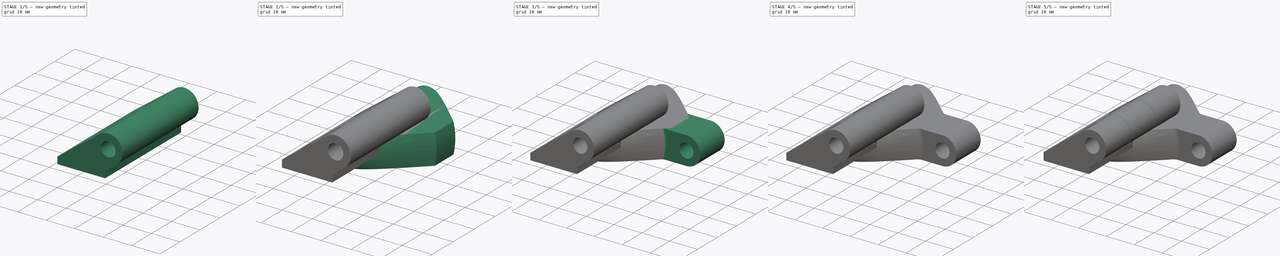
[diagram: build sequence overview — one tinted view per stage of 5, left to right]
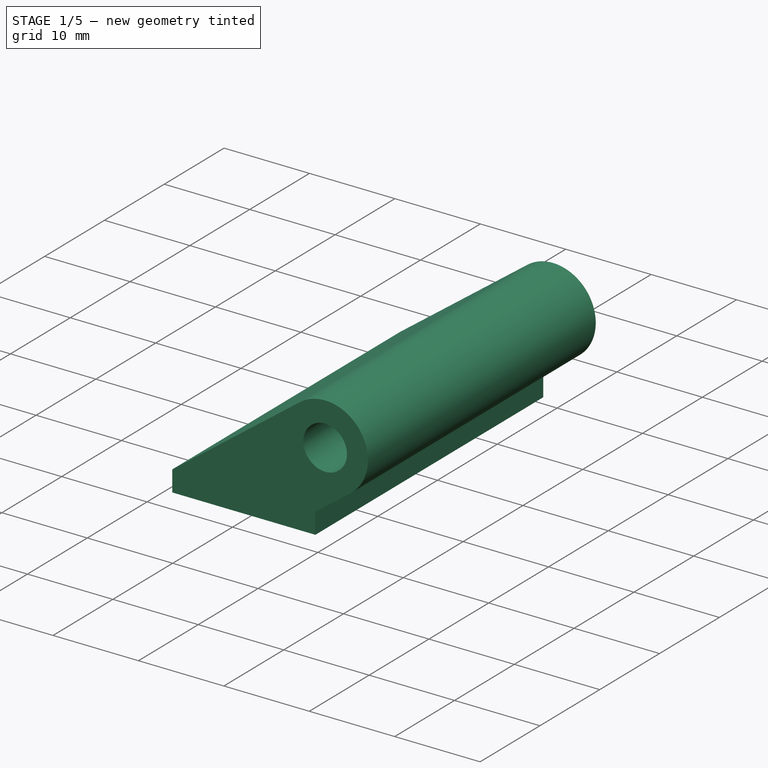
[diagram: stage 1 of 5 — iso view after this stage's code; geometry added in this stage tinted green]
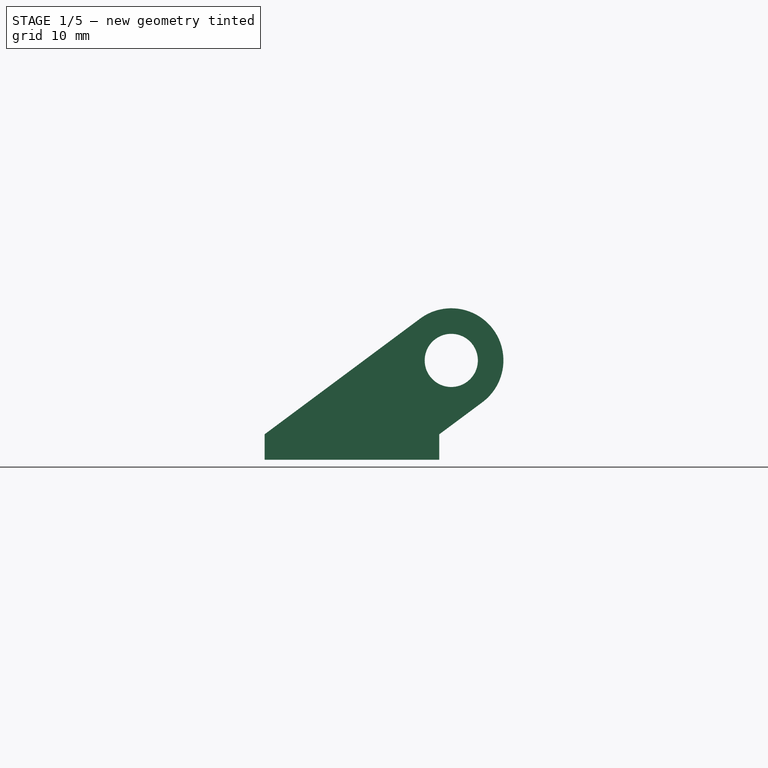
[diagram: stage 1 of 5 — front view after this stage's code; geometry added in this stage tinted green]
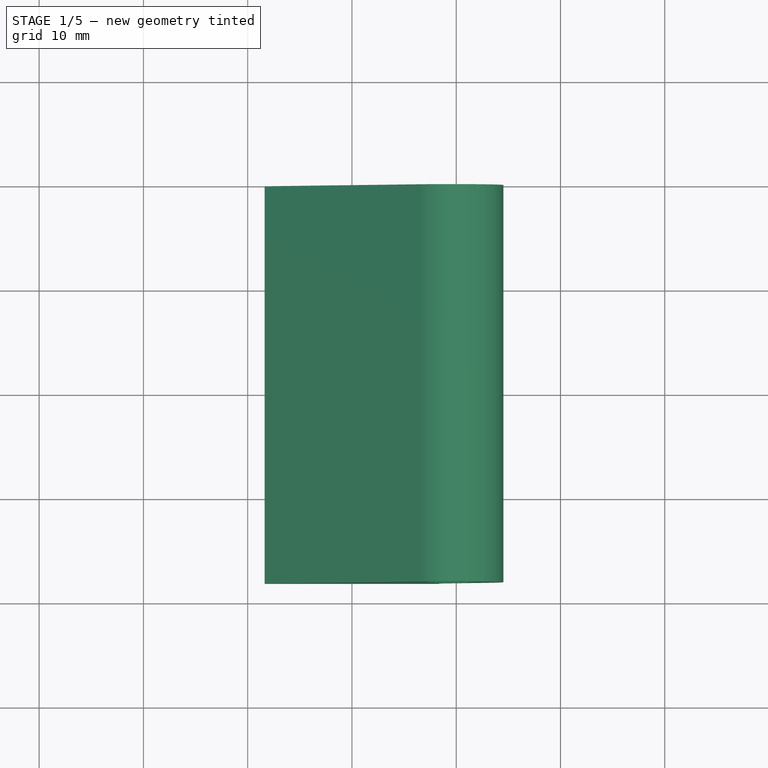
[diagram: stage 1 of 5 — top view after this stage's code; geometry added in this stage tinted green]
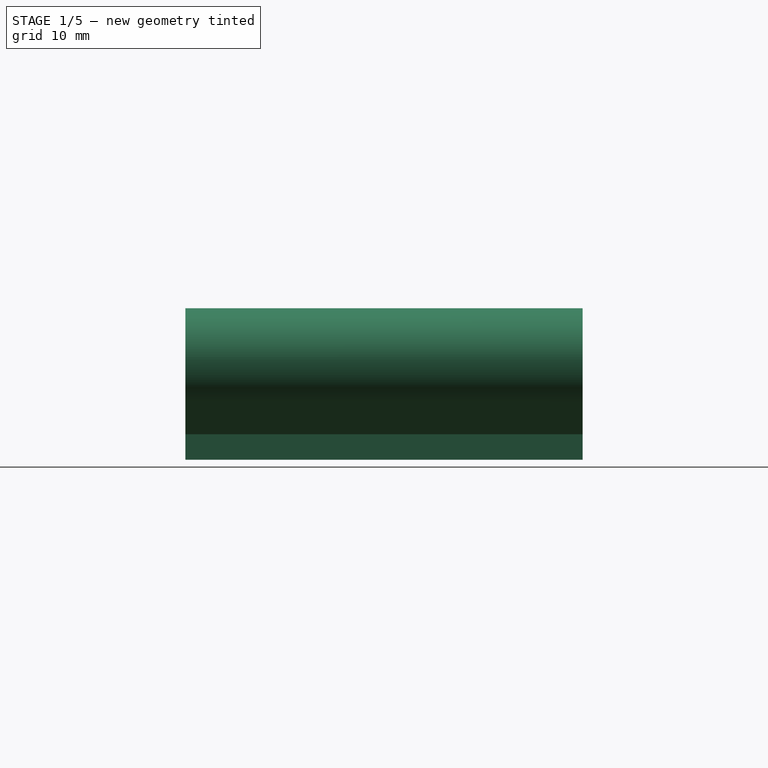
[diagram: stage 1 of 5 — right view after this stage's code; geometry added in this stage tinted green]
FCSTD DOCUMENT  (FreeCAD 0.19R23578 (Git))
Label: enclosure_hinges
License: All rights reserved
LicenseURL: http://en.wikipedia.org/wiki/All_rights_reserved
objects: PartDesign::CoordinateSystem×11, Sketcher::SketchObject×10, PartDesign::Fillet×5, PartDesign::Pocket×4, PartDesign::Pad×3, PartDesign::Body×3, PartDesign::Hole×2, PartDesign::Revolution×1
note: 54 computed .brp shape members not serialized (recipe doc carries the construction recipe); baked Part::Feature solids carry a one-line shape summary decoded from their .brp

FEATURE [Sketcher::SketchObject] Sketch004
  MapMode = 5
  Placement = pos=(0,0,0) rot=(1,0,0;1.5708rad)
  Support = -> [XZ_Plane003]
  expr: Constraints[7] = 0.375"
  expr: Constraints[8] = 0.375"
  sketch-geometry (7):
    g0: LineSegment StartX=-8.37762 StartY=2.44 StartZ=0 EndX=6.54086 EndY=13.5368 EndZ=0
    g1: ArcOfCircle CenterX=9.525 CenterY=9.525 CenterZ=0 NormalX=0 NormalY=0 NormalZ=1 AngleXU=0 Radius=5 StartAngle=5.35193 EndAngle=8.49352
    g2: LineSegment StartX=12.5091 StartY=5.51315 StartZ=0 EndX=8.37762 EndY=2.44 EndZ=0
    g3: LineSegment StartX=8.37762 StartY=2.44 StartZ=0 EndX=8.37762 EndY=0 EndZ=0
    g4: Circle CenterX=9.525 CenterY=9.525 CenterZ=0 NormalX=0 NormalY=0 NormalZ=1 AngleXU=0 Radius=2.55
    g5: LineSegment StartX=-8.37762 StartY=2.44 StartZ=0 EndX=-8.37762 EndY=0 EndZ=0
    g6: LineSegment StartX=8.37762 StartY=0 StartZ=0 EndX=-8.37762 EndY=0 EndZ=0
  constraints (18):
    c: Coincident(g3,g2)
    c: Vertical(g3)
    c: Tangent(g2,g1) = 1.5708
    c: Tangent(g1,g0) = 1.5708
    c: Diameter(g1) = 10
    c: Coincident(g4,g1)
    c: Diameter(g4) = 5.1
    c: DistanceX(g-1,g1) = 9.525
    c: DistanceY(g-1,g1) = 9.525
    c: Parallel(g0,g2)
    c: Coincident(g5,g0)
    c: PointOnObject(g5,g-1)
    c: Coincident(g6,g3)
    c: Coincident(g6,g5)
    c: Vertical(g5)
    c: Equal(g5,g3)
    c: DistanceY(g3,g3) = 2.44
    c: Symmetric(g5,g3,g-2)
FEATURE [PartDesign::Pad] Pad001
  Direction = (1,1,1)
  Length = 38.1
  Length2 = 100
  Placement = pos=(0,0,0) rot=(1,0,0;1.5708rad)
  Profile = -> Sketch004
  Type = 0
  expr: Length = 1.5"
FEATURE [Sketcher::SketchObject] Sketch007
  AttachmentOffset = pos=(0,0,22.44) rot=(0,0,1;0rad)
  MapMode = 5
  Placement = pos=(0,0,22.44) rot=(0,0,1;0rad)
  Support = -> [XY_Plane004]
  expr: Constraints[10] = 5.25mm
  expr: Constraints[8] = Pad002.Length / 2
  sketch-geometry (4):
    g0: Circle CenterX=0 CenterY=-6.35 CenterZ=0 NormalX=0 NormalY=0 NormalZ=1 AngleXU=0 Radius=2.625
    g1: Circle CenterX=0 CenterY=-31.75 CenterZ=0 NormalX=0 NormalY=0 NormalZ=1 AngleXU=0 Radius=2.625
    g2: LineSegment StartX=0 StartY=-6.35 StartZ=0 EndX=0 EndY=-19.05 EndZ=0
    g3: LineSegment StartX=0 StartY=-19.05 StartZ=0 EndX=0 EndY=-31.75 EndZ=0
  constraints (11):
    c: PointOnObject(g0,g-2)
    c: PointOnObject(g1,g-2)
    c: DistanceY(g1,g0) = 25.4
    c: Coincident(g2,g0)
    c: PointOnObject(g2,g-2)
    c: Coincident(g3,g2)
    c: Coincident(g3,g1)
    c: Equal(g2,g3)
    c: DistanceY(g2,g-1) = 19.05
    c: Equal(g0,g1)
    c: Diameter(g0) = 5.25
FEATURE [Sketcher::SketchObject] Sketch008
  MapMode = 5
  Placement = pos=(0,0,0) rot=(0.57735,0.57735,0.57735;2.0944rad)
  Support = -> [YZ_Plane004]
  expr: Constraints[26] = Pad002.Length / 3 - 0.24mm
  expr: Constraints[24] = Pad002.Length / 2
  sketch-geometry (9):
    g0: LineSegment StartX=-25.28 StartY=2.44 StartZ=0 EndX=-45.28 EndY=2.44 EndZ=0
    g1: LineSegment StartX=-45.28 StartY=2.44 StartZ=0 EndX=-45.28 EndY=22.44 EndZ=0
    g2: LineSegment StartX=-45.28 StartY=22.44 StartZ=0 EndX=-25.28 EndY=22.44 EndZ=0
    g3: LineSegment StartX=-25.28 StartY=22.44 StartZ=0 EndX=-25.28 EndY=2.44 EndZ=0
    g4: LineSegment StartX=-12.82 StartY=2.44 StartZ=0 EndX=7.18 EndY=2.44 EndZ=0
    g5: LineSegment StartX=7.18 StartY=2.44 StartZ=0 EndX=7.18 EndY=22.44 EndZ=0
    g6: LineSegment StartX=7.18 StartY=22.44 StartZ=0 EndX=-12.82 EndY=22.44 EndZ=0
    g7: LineSegment StartX=-12.82 StartY=22.44 StartZ=0 EndX=-12.82 EndY=2.44 EndZ=0
    g8: LineSegment StartX=-19.05 StartY=22.44 StartZ=0 EndX=-19.05 EndY=2.44 EndZ=0
  constraints (27):
    c: Coincident(g0,g1)
    c: Coincident(g1,g2)
    c: Coincident(g2,g3)
    c: Coincident(g3,g0)
    c: Horizontal(g0)
    c: Horizontal(g2)
    c: Vertical(g1)
    c: Vertical(g3)
    c: Coincident(g4,g5)
    c: Coincident(g5,g6)
    c: Coincident(g6,g7)
    c: Coincident(g7,g4)
    c: Horizontal(g4)
    c: Horizontal(g6)
    c: Vertical(g5)
    c: Vertical(g7)
    c: Horizontal(g6,g2)
    c: Horizontal(g0,g4)
    c: Equal(g4,g0)
    c: DistanceY(g1,g1) = 20
    c: DistanceX(g2,g2) = 20
    c: Horizontal(g8,g2)
    c: Horizontal(g0,g8)
    c: Symmetric(g6,g2,g8)
    c: DistanceX(g8,g-1) = 19.05
    c: DistanceY(g-1,g4) = 2.44
    c: DistanceX(g2,g6) = 12.46
FEATURE [Sketcher::SketchObject] Sketch009
  MapMode = 5
  Placement = pos=(0,0,0) rot=(1,0,0;1.5708rad)
  Support = -> [XZ_Plane005]
  expr: Constraints[8] = 0.375"
  expr: Constraints[7] = 0.375"
  sketch-geometry (7):
    g0: LineSegment StartX=-8.37762 StartY=2.44 StartZ=0 EndX=6.54086 EndY=13.5368 EndZ=0
    g1: ArcOfCircle CenterX=9.525 CenterY=9.525 CenterZ=0 NormalX=0 NormalY=0 NormalZ=1 AngleXU=0 Radius=5 StartAngle=5.35193 EndAngle=8.49352
    g2: LineSegment StartX=12.5091 StartY=5.51315 StartZ=0 EndX=8.37762 EndY=2.44 EndZ=0
    g3: LineSegment StartX=8.37762 StartY=2.44 StartZ=0 EndX=8.37762 EndY=0 EndZ=0
    g4: Circle CenterX=9.525 CenterY=9.525 CenterZ=0 NormalX=0 NormalY=0 NormalZ=1 AngleXU=0 Radius=2.55
    g5: LineSegment StartX=-8.37762 StartY=2.44 StartZ=0 EndX=-8.37762 EndY=0 EndZ=0
    g6: LineSegment StartX=8.37762 StartY=0 StartZ=0 EndX=-8.37762 EndY=0 EndZ=0
  constraints (18):
    c: Coincident(g3,g2)
    c: Vertical(g3)
    c: Tangent(g2,g1) = 1.5708
    c: Tangent(g1,g0) = 1.5708
    c: Diameter(g1) = 10
    c: Coincident(g4,g1)
    c: Diameter(g4) = 5.1
    c: DistanceX(g-1,g1) = 9.525
    c: DistanceY(g-1,g1) = 9.525
    c: Parallel(g0,g2)
    c: Coincident(g5,g0)
    c: PointOnObject(g5,g-1)
    c: Coincident(g6,g3)
    c: Coincident(g6,g5)
    c: Vertical(g5)
    c: Equal(g5,g3)
    c: DistanceY(g3,g3) = 2.44
    c: Symmetric(g5,g3,g-2)
FEATURE [PartDesign::Pad] Pad002
  Direction = (1,1,1)
  Length = 38.1
  Length2 = 100
  Placement = pos=(0,0,0) rot=(1,0,0;1.5708rad)
  Profile = -> Sketch009
  Type = 0
  expr: Length = 1.5"
FEATURE [PartDesign::Hole] Hole002
  BaseFeature = -> Pad002
  Depth = 25
  DepthType = 1
  Diameter = 6
  DrillPoint = 1
  DrillPointAngle = 118
  HoleCutCountersinkAngle = 90
  HoleCutDepth = 20
  HoleCutDiameter = 11
  HoleCutType = 1
  ModelActualThread = false
  Placement = pos=(0,0,0) rot=(1,0,0;1.5708rad)
  Profile = -> Sketch007
  Tapered = false
  TaperedAngle = 90
  ThreadAngle = 0
  ThreadClass = 0
  ThreadCutOffInner = 0
  ThreadCutOffOuter = 0
  ThreadDirection = 0
  ThreadFit = 0
  ThreadPitch = 0
  ThreadSize = 0
  ThreadType = 0
  Threaded = false
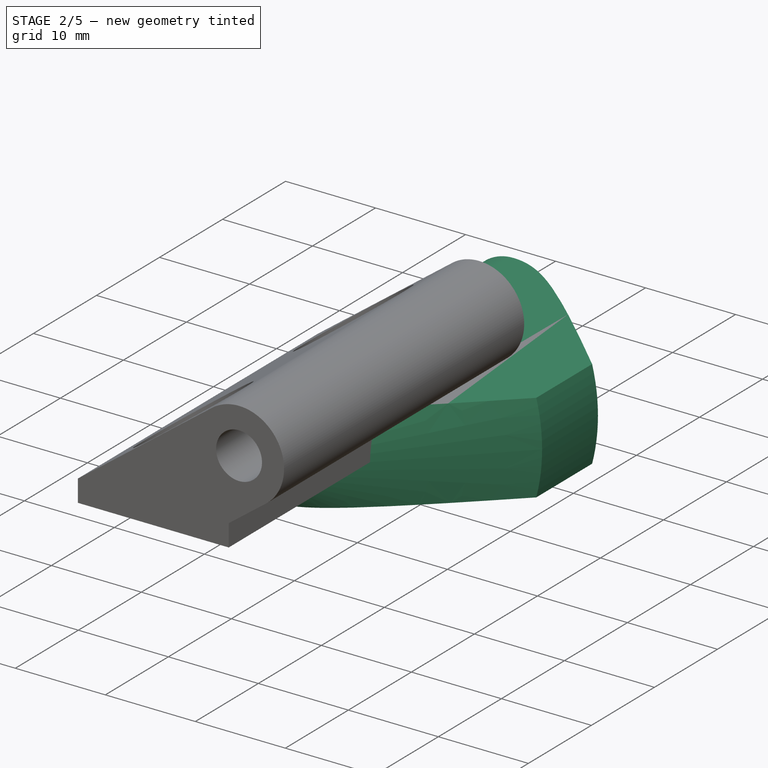
[diagram: stage 2 of 5 — iso view after this stage's code; geometry added in this stage tinted green]
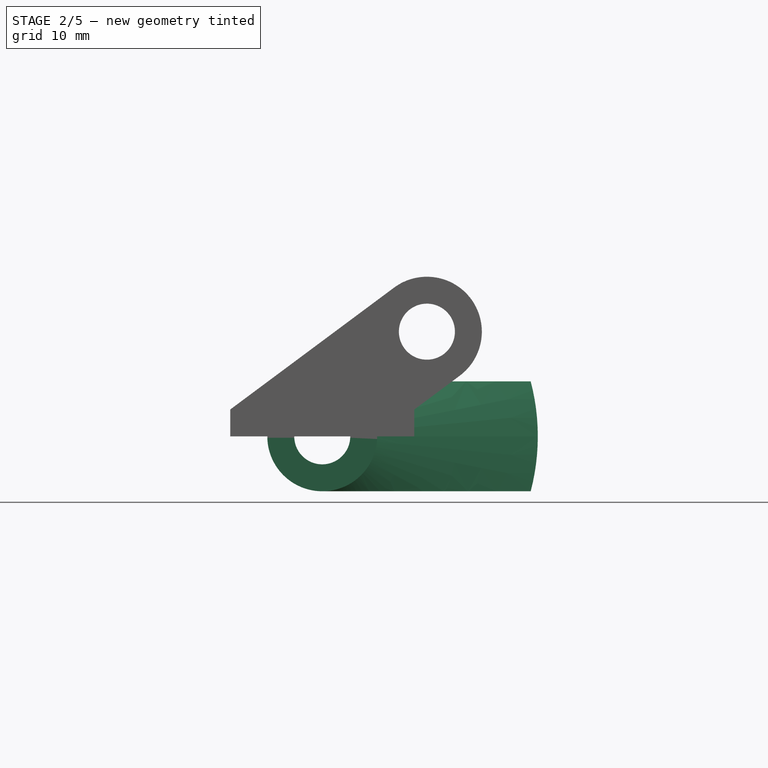
[diagram: stage 2 of 5 — front view after this stage's code; geometry added in this stage tinted green]
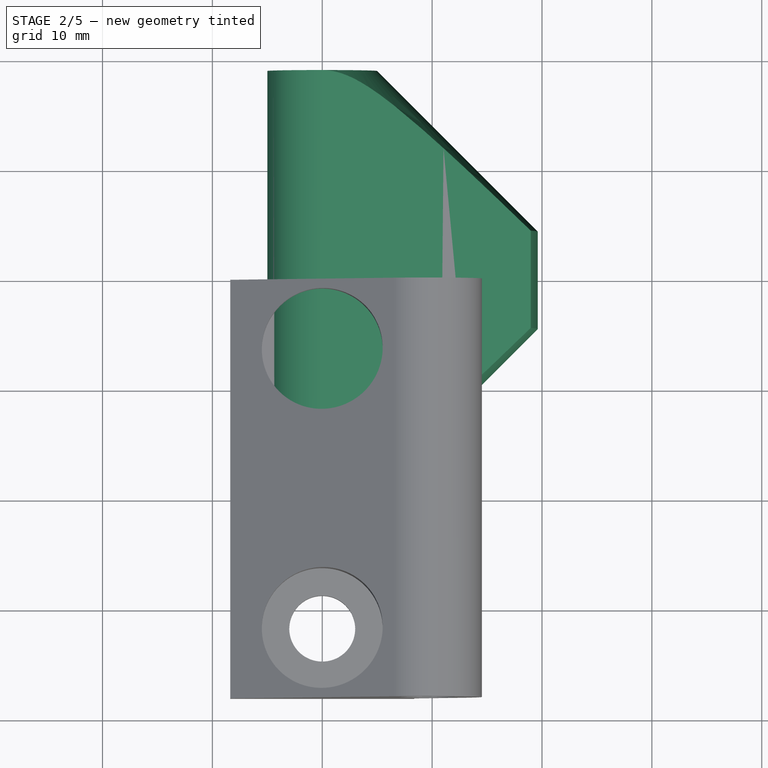
[diagram: stage 2 of 5 — top view after this stage's code; geometry added in this stage tinted green]
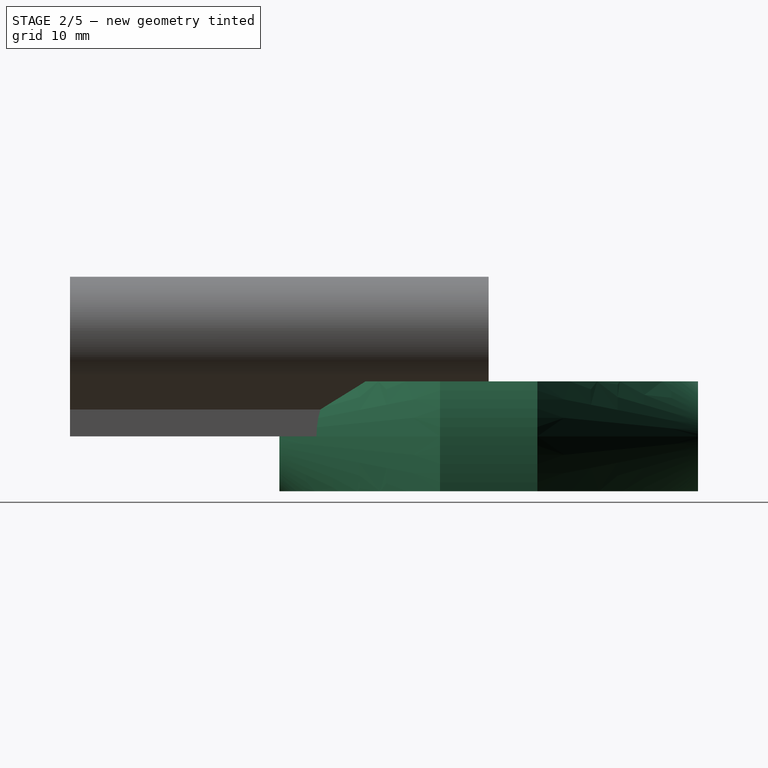
[diagram: stage 2 of 5 — right view after this stage's code; geometry added in this stage tinted green]
FEATURE [Sketcher::SketchObject] Sketch005
  AttachmentOffset = pos=(0,0,22.44) rot=(0,0,1;0rad)
  MapMode = 5
  Placement = pos=(0,0,22.44) rot=(0,0,1;0rad)
  Support = -> [XY_Plane003]
  expr: Constraints[8] = Pad001.Length / 2
  expr: Constraints[10] = 5.25mm
  sketch-geometry (4):
    g0: Circle CenterX=0 CenterY=-6.35 CenterZ=0 NormalX=0 NormalY=0 NormalZ=1 AngleXU=0 Radius=2.625
    g1: Circle CenterX=0 CenterY=-31.75 CenterZ=0 NormalX=0 NormalY=0 NormalZ=1 AngleXU=0 Radius=2.625
    g2: LineSegment StartX=0 StartY=-6.35 StartZ=0 EndX=0 EndY=-19.05 EndZ=0
    g3: LineSegment StartX=0 StartY=-19.05 StartZ=0 EndX=0 EndY=-31.75 EndZ=0
  constraints (11):
    c: PointOnObject(g0,g-2)
    c: PointOnObject(g1,g-2)
    c: DistanceY(g1,g0) = 25.4
    c: Coincident(g2,g0)
    c: PointOnObject(g2,g-2)
    c: Coincident(g3,g2)
    c: Coincident(g3,g1)
    c: Equal(g2,g3)
    c: DistanceY(g2,g-1) = 19.05
    c: Equal(g0,g1)
    c: Diameter(g0) = 5.25
FEATURE [PartDesign::Hole] Hole001
  BaseFeature = -> Pad001
  Depth = 25
  DepthType = 1
  Diameter = 6
  DrillPoint = 1
  DrillPointAngle = 118
  HoleCutCountersinkAngle = 90
  HoleCutDepth = 20
  HoleCutDiameter = 11
  HoleCutType = 1
  ModelActualThread = false
  Placement = pos=(0,0,0) rot=(1,0,0;1.5708rad)
  Profile = -> Sketch005
  Tapered = false
  TaperedAngle = 90
  ThreadAngle = 0
  ThreadClass = 0
  ThreadCutOffInner = 0
  ThreadCutOffOuter = 0
  ThreadDirection = 0
  ThreadFit = 0
  ThreadPitch = 0
  ThreadSize = 0
  ThreadType = 0
  Threaded = false
FEATURE [Sketcher::SketchObject] Sketch
  MapMode = 5
  Support = -> [XY_Plane006]
  expr: Constraints[11] = 1.5in
  sketch-geometry (7):
    g0: LineSegment StartX=2.55 StartY=19.05 StartZ=0 EndX=5 EndY=19.05 EndZ=0
    g1: LineSegment StartX=5 StartY=19.05 StartZ=0 EndX=19.6187 EndY=4.43129 EndZ=0
    g2: LineSegment StartX=19.6187 StartY=4.43129 StartZ=0 EndX=19.6187 EndY=-4.43129 EndZ=0
    g3: LineSegment StartX=19.6187 StartY=-4.43129 StartZ=0 EndX=5 EndY=-19.05 EndZ=0
    g4: LineSegment StartX=5 StartY=-19.05 StartZ=0 EndX=2.55 EndY=-19.05 EndZ=0
    g5: LineSegment StartX=2.55 StartY=-19.05 StartZ=0 EndX=2.55 EndY=19.05 EndZ=0
    g6: LineSegment StartX=-9.05314 StartY=0 StartZ=0 EndX=28.1994 EndY=0 EndZ=0
  constraints (16):
    c: Horizontal(g0)
    c: Coincident(g0,g1)
    c: Coincident(g1,g2)
    c: Coincident(g2,g3)
    c: Coincident(g3,g4)
    c: Coincident(g4,g5)
    c: Coincident(g5,g0)
    c: Horizontal(g6)
    c: Symmetric(g0,g4,g6)
    c: Symmetric(g3,g0,g6)
    c: Symmetric(g1,g2,g6)
    c: DistanceY(g5,g5) = 38.1
    c: DistanceX(g-1,g0) = 2.55
    c: Angle(g5,g1) = 0.785398
    c: DistanceX(g-1,g0) = 5
    c: PointOnObject(g6,g-1)
FEATURE [PartDesign::Revolution] Revolution
  Angle = 360
  Axis = (0,1,0)
  Base = (0,0,0)
  Profile = -> Sketch
  ReferenceAxis = -> Sketch [V_Axis]
  Reversed = true
FEATURE [Sketcher::SketchObject] Sketch010
  MapMode = 5
  Placement = pos=(0,0,0) rot=(1,0,0;1.5708rad)
  Support = -> [XZ_Plane006]
  sketch-geometry (8):
    g0: ArcOfCircle CenterX=0 CenterY=0 CenterZ=0 NormalX=0 NormalY=0 NormalZ=1 AngleXU=0 Radius=5 StartAngle=1.5708 EndAngle=4.71239
    g1: LineSegment StartX=3e-16 StartY=5 StartZ=0 EndX=76.4224 EndY=5 EndZ=0
    g2: LineSegment StartX=76.4224 StartY=5 StartZ=0 EndX=76.4224 EndY=50.1076 EndZ=0
    g3: LineSegment StartX=76.4224 StartY=50.1076 StartZ=0 EndX=-42.6385 EndY=50.1076 EndZ=0
    g4: LineSegment StartX=-42.6385 StartY=50.1076 StartZ=0 EndX=-42.6385 EndY=-50.303 EndZ=0
    g5: LineSegment StartX=-42.6385 StartY=-50.303 StartZ=0 EndX=76.4224 EndY=-50.303 EndZ=0
    g6: LineSegment StartX=76.4224 StartY=-50.303 StartZ=0 EndX=76.4224 EndY=-5 EndZ=0
    g7: LineSegment StartX=76.4224 StartY=-5 StartZ=0 EndX=0 EndY=-5 EndZ=0
  constraints (20):
    c: Coincident(g0,g-1)
    c: PointOnObject(g0,g-2)
    c: PointOnObject(g0,g-2)
    c: Coincident(g1,g0)
    c: Horizontal(g1)
    c: Coincident(g1,g2)
    c: Vertical(g2)
    c: Coincident(g2,g3)
    c: Horizontal(g3)
    c: Coincident(g3,g4)
    c: Vertical(g4)
    c: Coincident(g4,g5)
    c: Horizontal(g5)
    c: Coincident(g5,g6)
    c: Coincident(g6,g7)
    c: Coincident(g7,g0)
    c: Horizontal(g7)
    c: Vertical(g6)
    c: Vertical(g6,g1)
    c: Radius(g0) = 5
FEATURE [PartDesign::Pocket] Pocket
  BaseFeature = -> Revolution
  Length = 5
  Length2 = 100
  Midplane = true
  Profile = -> Sketch010
  Type = 1
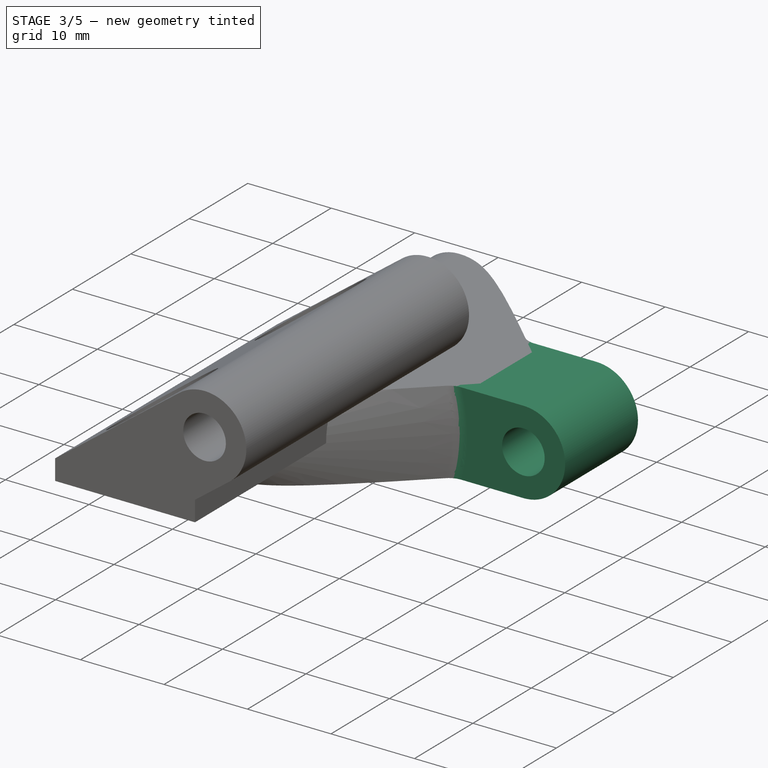
[diagram: stage 3 of 5 — iso view after this stage's code; geometry added in this stage tinted green]
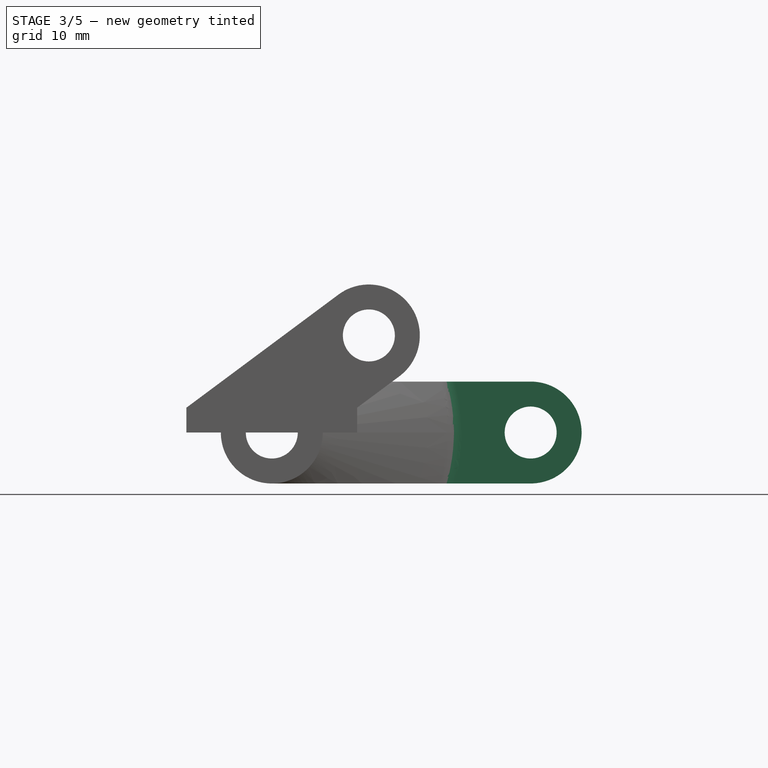
[diagram: stage 3 of 5 — front view after this stage's code; geometry added in this stage tinted green]
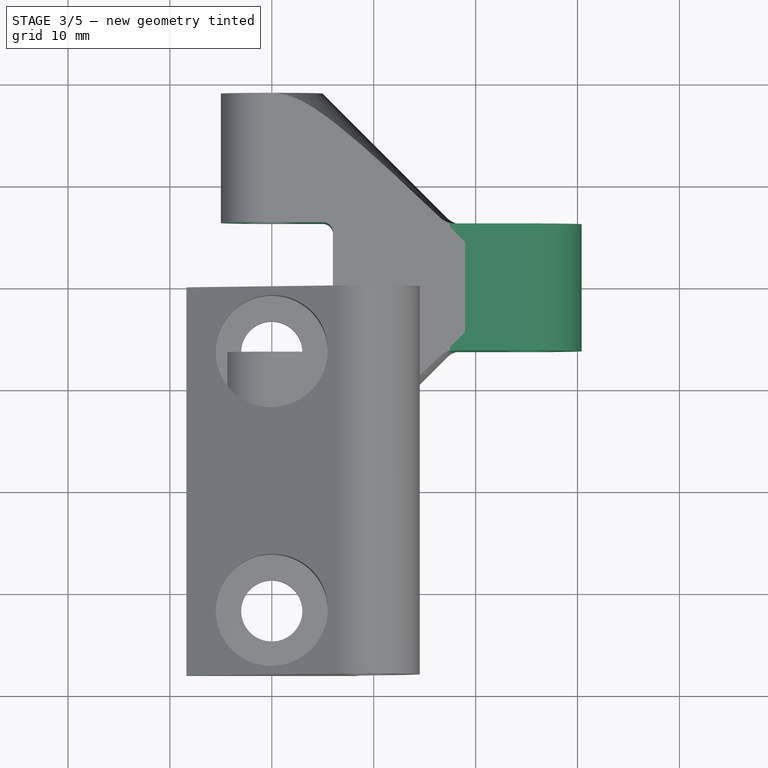
[diagram: stage 3 of 5 — top view after this stage's code; geometry added in this stage tinted green]
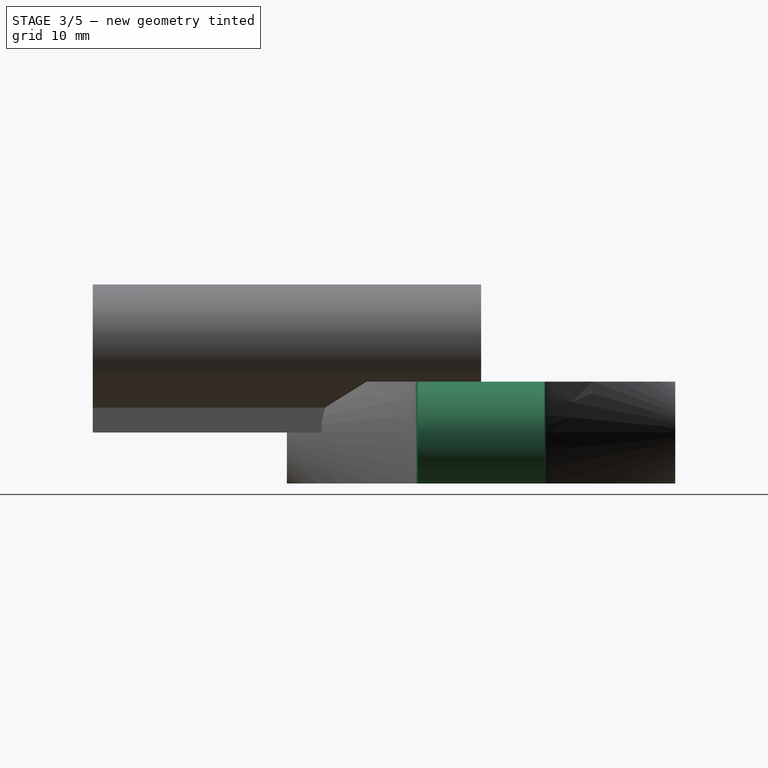
[diagram: stage 3 of 5 — right view after this stage's code; geometry added in this stage tinted green]
FEATURE [Sketcher::SketchObject] Sketch011
  MapMode = 5
  Placement = pos=(0,0,0) rot=(1,0,0;1.5708rad)
  Support = -> [XZ_Plane006]
  expr: Constraints[11] = 1in
  sketch-geometry (5):
    g0: Circle CenterX=25.4 CenterY=0 CenterZ=0 NormalX=0 NormalY=0 NormalZ=1 AngleXU=0 Radius=2.55
    g1: ArcOfCircle CenterX=25.4 CenterY=0 CenterZ=0 NormalX=0 NormalY=0 NormalZ=1 AngleXU=0 Radius=5 StartAngle=4.71239 EndAngle=7.85398
    g2: LineSegment StartX=25.4 StartY=5 StartZ=0 EndX=7 EndY=5 EndZ=0
    g3: LineSegment StartX=7 StartY=5 StartZ=0 EndX=7 EndY=-5 EndZ=0
    g4: LineSegment StartX=7 StartY=-5 StartZ=0 EndX=25.4 EndY=-5 EndZ=0
  constraints (13):
    c: PointOnObject(g0,g-1)
    c: Coincident(g1,g0)
    c: Tangent(g1,g2) = -1.5708
    c: Coincident(g2,g3)
    c: Coincident(g3,g4)
    c: Tangent(g4,g1) = -1.5708
    c: Horizontal(g2)
    c: Horizontal(g4)
    c: Vertical(g3)
    c: Diameter(g0) = 5.1
    c: Diameter(g1) = 10
    c: DistanceX(g-1,g0) = 25.4
    c: DistanceX(g-1,g2) = 7
FEATURE [PartDesign::Pad] Pad
  BaseFeature = -> Pocket
  Direction = (1,1,1)
  Length = 12.46
  Length2 = 100
  Midplane = true
  Profile = -> Sketch011
  Type = 0
  expr: Length = Pad002.Length / 3 - 0.24mm
FEATURE [Sketcher::SketchObject] Sketch012
  MapMode = 5
  Support = -> [XY_Plane006]
  expr: Constraints[12] = Pad001.Length / 3
  sketch-geometry (6):
    g0: LineSegment StartX=-20.0307 StartY=6.35 StartZ=0 EndX=5 EndY=6.35 EndZ=0
    g1: LineSegment StartX=6 StartY=5.35 StartZ=0 EndX=6 EndY=-5.35 EndZ=0
    g2: LineSegment StartX=5 StartY=-6.35 StartZ=0 EndX=-20.0307 EndY=-6.35 EndZ=0
    g3: LineSegment StartX=-20.0307 StartY=-6.35 StartZ=0 EndX=-20.0307 EndY=6.35 EndZ=0
    g4: ArcOfCircle CenterX=5 CenterY=5.35 CenterZ=0 NormalX=0 NormalY=0 NormalZ=1 AngleXU=0 Radius=1 StartAngle=0 EndAngle=1.5708
    g5: ArcOfCircle CenterX=5 CenterY=-5.35 CenterZ=0 NormalX=0 NormalY=0 NormalZ=1 AngleXU=0 Radius=1 StartAngle=4.71239 EndAngle=6.28319
  constraints (14):
    c: Coincident(g2,g3)
    c: Coincident(g3,g0)
    c: Horizontal(g0)
    c: Horizontal(g2)
    c: Vertical(g1)
    c: Symmetric(g0,g2,g-1)
    c: Tangent(g0,g4) = 1.5708
    c: Tangent(g1,g4) = 1.5708
    c: Tangent(g1,g5) = 1.5708
    c: Tangent(g2,g5) = 1.5708
    c: Radius(g5) = 1
    c: Equal(g4,g5)
    c: DistanceY(g3,g3) = 12.7
    c: DistanceX(g-1,g1) = 6
FEATURE [PartDesign::Pocket] Pocket003
  BaseFeature = -> Pad
  Length = 5
  Length2 = 100
  Midplane = true
  Profile = -> Sketch012
  Type = 1
FEATURE [PartDesign::Fillet] Fillet004
  Base = -> Pocket003 [Edge14,Edge8,Edge55,Edge63]
  BaseFeature = -> Pocket003
  Radius = 2
  SupportTransform = false
FEATURE [PartDesign::CoordinateSystem] LCS_1
  AttacherType = Attacher::AttachEngine3D
  MapMode = 45
  Placement = pos=(2e-16,-19.05,0) rot=(0,0,1;0rad)
  Support = -> [Pad001]
FEATURE [PartDesign::CoordinateSystem] LCS_2
  AttacherType = Attacher::AttachEngine3D
  MapMode = 11
  Placement = pos=(0,-6.35,2.44) rot=(0,0,1;1.5708rad)
  Support = -> [Hole001]
FEATURE [PartDesign::CoordinateSystem] LCS_3
  AttacherType = Attacher::AttachEngine3D
  MapMode = 11
  Placement = pos=(0,-31.75,2.44) rot=(0,0,1;1.5708rad)
  Support = -> [Hole001]
FEATURE [PartDesign::CoordinateSystem] LCS_4
  AttacherType = Attacher::AttachEngine3D
  MapMode = 45
  Placement = pos=(9.525,-19.05,9.525) rot=(0,0.707107,0.707107;3.14159rad)
  Support = -> [Pad001]
FEATURE [PartDesign::CoordinateSystem] LCS_5
  AttacherType = Attacher::AttachEngine3D
  AttachmentOffset = pos=(0,0,19.05) rot=(0,0,1;0rad)
  MapMode = 11
  Placement = pos=(9.525,-19.05,9.525) rot=(0.57735,-0.57735,0.57735;2.0944rad)
  Support = -> [Sketch004]
  expr: .AttachmentOffset.Base.z = 0.5 * Pad001.Length
FEATURE [PartDesign::Body] Body001  label="Hinge_A"
  Group = -> [Sketch004,Pad001,Sketch005,Hole001,Sketch006,Pocket001,Fillet001,Fillet002,LCS_1,LCS_2,LCS_3,LCS_4,LCS_5]
  Origin = -> Origin003
  Tip = -> Fillet002
FEATURE [PartDesign::CoordinateSystem] LCS_6
  AttacherType = Attacher::AttachEngine3D
  MapMode = 45
  Placement = pos=(2e-16,-19.05,0) rot=(0,0,1;0rad)
  Support = -> [Pad002]
FEATURE [PartDesign::CoordinateSystem] LCS_7
  AttacherType = Attacher::AttachEngine3D
  AttachmentOffset = pos=(0,0,19.05) rot=(0,0,1;0rad)
  MapMode = 11
  Placement = pos=(9.525,-19.05,9.525) rot=(0.57735,-0.57735,0.57735;2.0944rad)
  Support = -> [Sketch009]
  expr: .AttachmentOffset.Base.z = Pad002.Length / 2
FEATURE [PartDesign::CoordinateSystem] LCS_8
  AttacherType = Attacher::AttachEngine3D
  MapMode = 11
  Placement = pos=(0,-6.35,2.44) rot=(0,0,1;1.5708rad)
  Support = -> [Hole002]
FEATURE [PartDesign::CoordinateSystem] LCS_9
  AttacherType = Attacher::AttachEngine3D
  MapMode = 11
  Placement = pos=(0,-31.75,2.44) rot=(0,0,1;1.5708rad)
  Support = -> [Hole002]
FEATURE [PartDesign::Body] Body002  label="Hinge_B"
  Group = -> [Sketch009,Pad002,Sketch007,Hole002,Sketch008,Pocket002,Fillet,Fillet003,LCS_6,LCS_7,LCS_8,LCS_9]
  Origin = -> Origin005
  Tip = -> Fillet003
FEATURE [PartDesign::CoordinateSystem] LCS_10
  AttacherType = Attacher::AttachEngine3D
  MapMode = 5
  Support = -> [XY_Plane006]
FEATURE [PartDesign::CoordinateSystem] LCS_11
  AttacherType = Attacher::AttachEngine3D
  MapMode = 11
  Placement = pos=(25.4,0,0) rot=(0.57735,-0.57735,0.57735;2.0944rad)
  Support = -> [Sketch011]
FEATURE [PartDesign::Body] Body  label="Hinge_C"
  Group = -> [Sketch,Revolution,Sketch010,Pocket,Sketch011,Pad,Sketch012,Pocket003,Fillet004,LCS_10,LCS_11]
  Origin = -> Origin006
  Tip = -> Fillet004
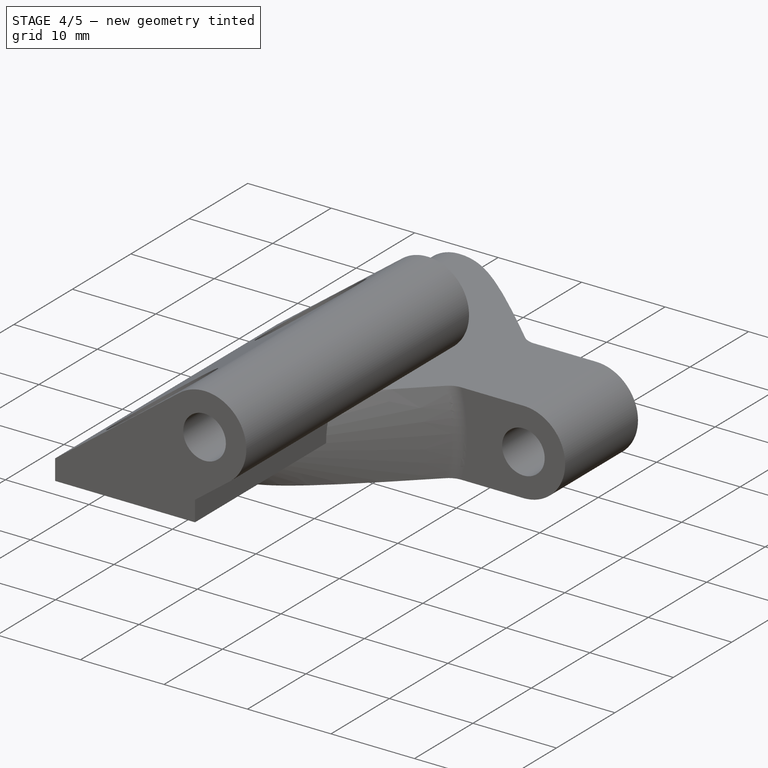
[diagram: stage 4 of 5 — iso view after this stage's code; geometry added in this stage tinted green]
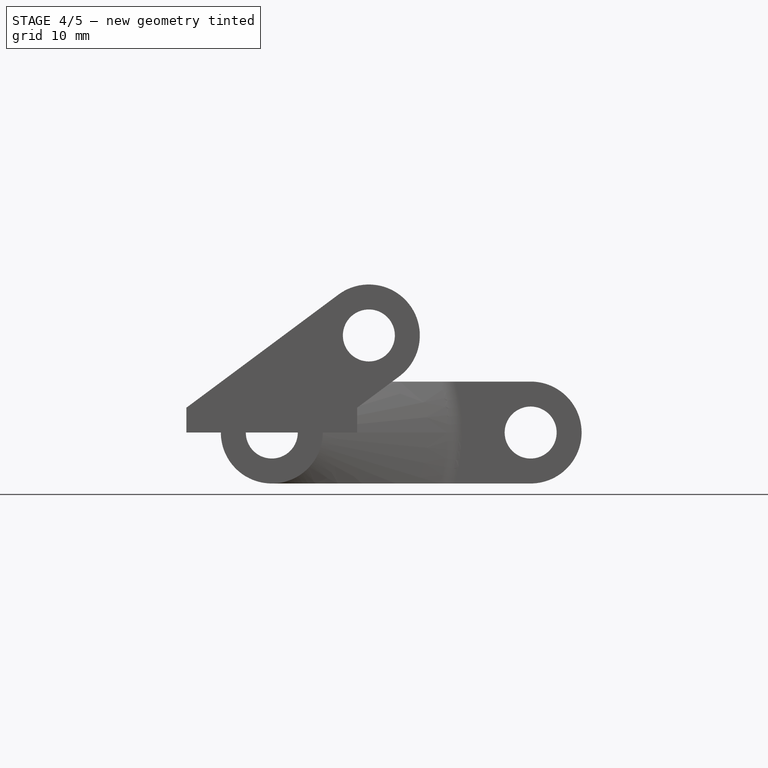
[diagram: stage 4 of 5 — front view after this stage's code; geometry added in this stage tinted green]
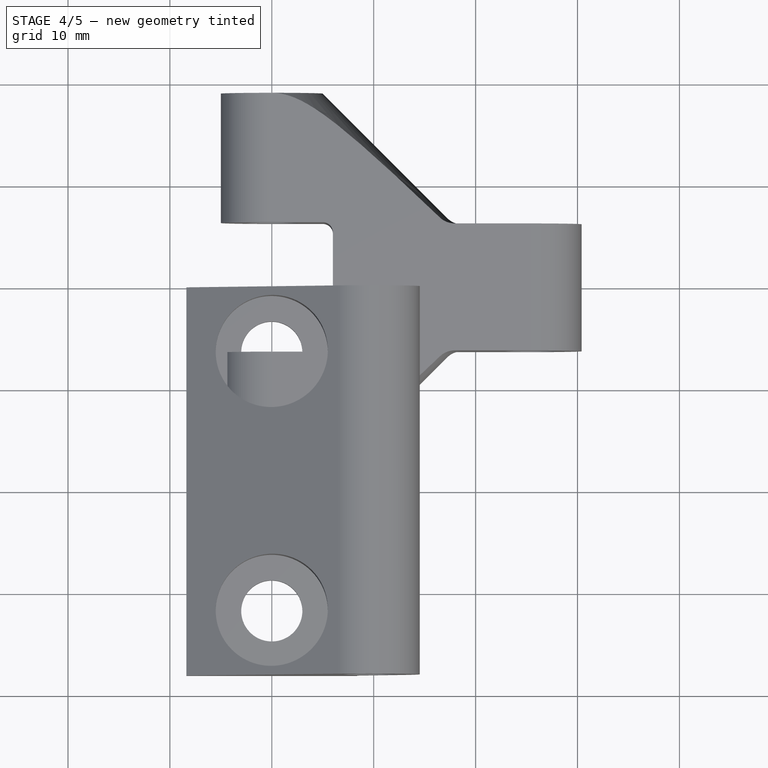
[diagram: stage 4 of 5 — top view after this stage's code; geometry added in this stage tinted green]
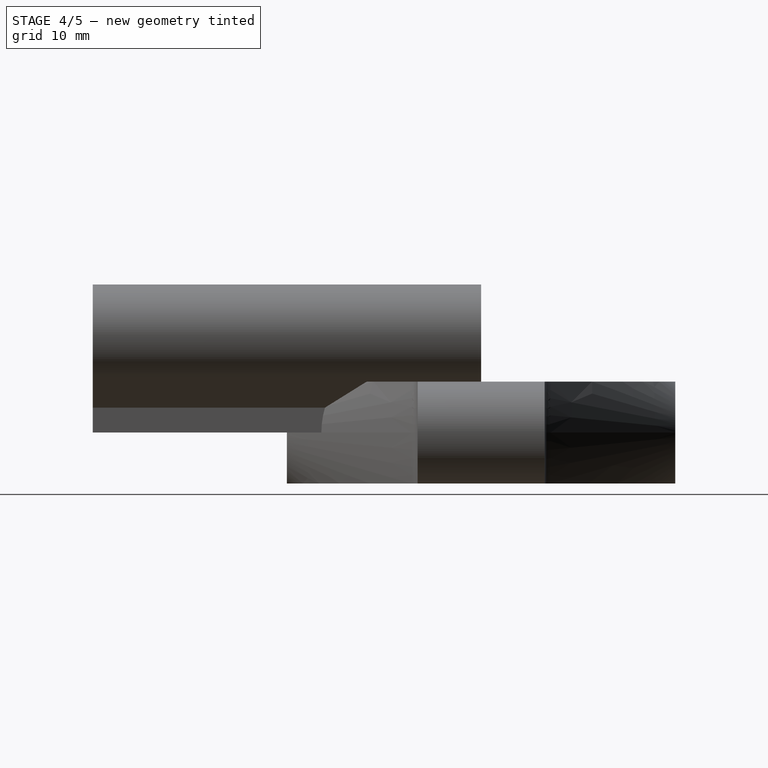
[diagram: stage 4 of 5 — right view after this stage's code; geometry added in this stage tinted green]
FEATURE [PartDesign::Pocket] Pocket002
  BaseFeature = -> Hole002
  Length = 5
  Length2 = 100
  Midplane = true
  Placement = pos=(0,0,0) rot=(1,0,0;1.5708rad)
  Profile = -> Sketch008
  Type = 1
FEATURE [PartDesign::Fillet] Fillet
  Base = -> Pocket002 [Edge33,Edge18,Edge17,Edge32]
  BaseFeature = -> Pocket002
  Placement = pos=(0,0,0) rot=(1,0,0;1.5708rad)
  Radius = 1
  SupportTransform = true
FEATURE [PartDesign::Fillet] Fillet003
  Base = -> Fillet [Edge9,Edge28]
  BaseFeature = -> Fillet
  Placement = pos=(0,0,0) rot=(1,0,0;1.5708rad)
  Radius = 1
  SupportTransform = true
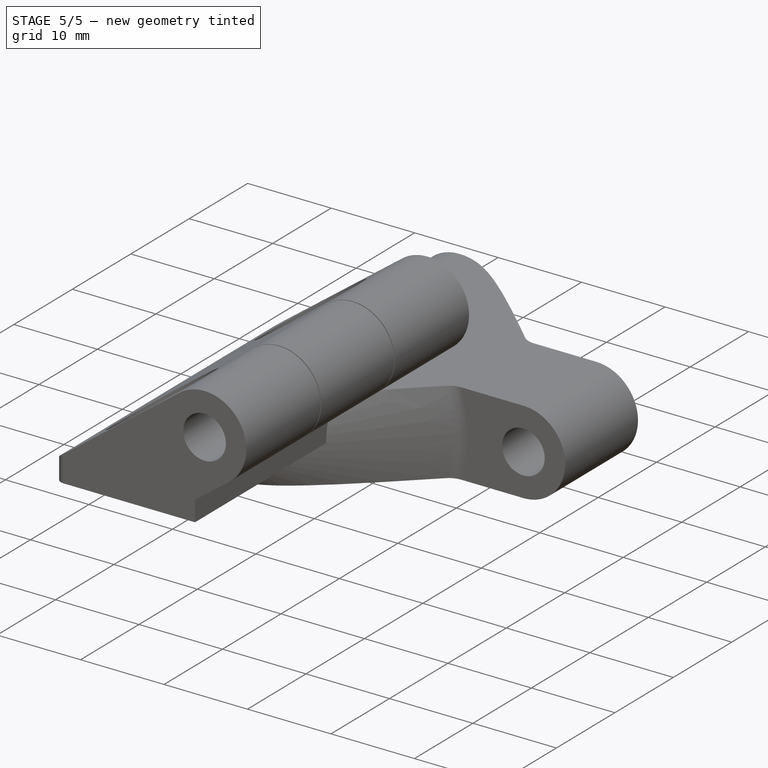
[diagram: stage 5 of 5 — iso view after this stage's code; geometry added in this stage tinted green]
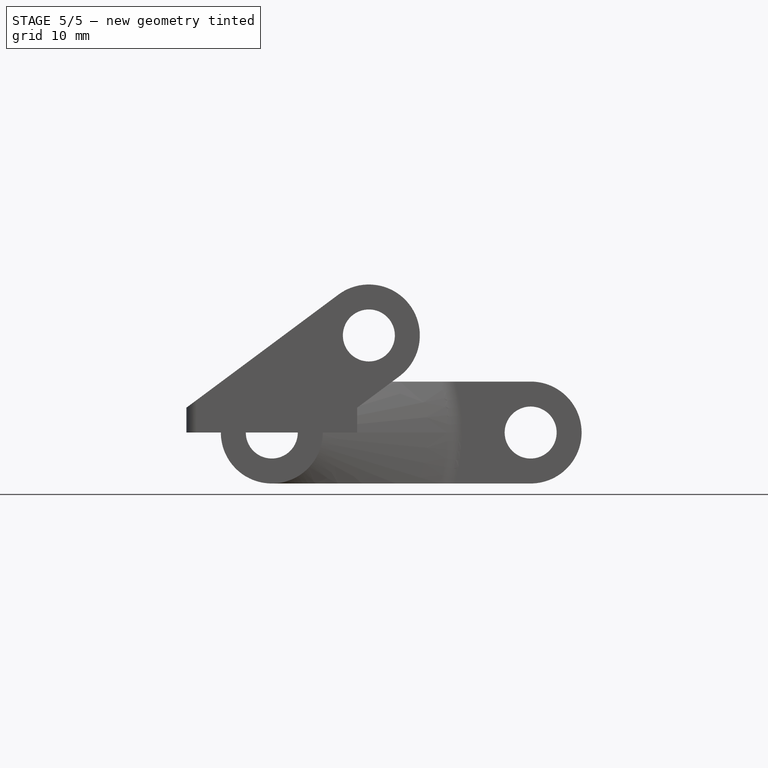
[diagram: stage 5 of 5 — front view after this stage's code; geometry added in this stage tinted green]
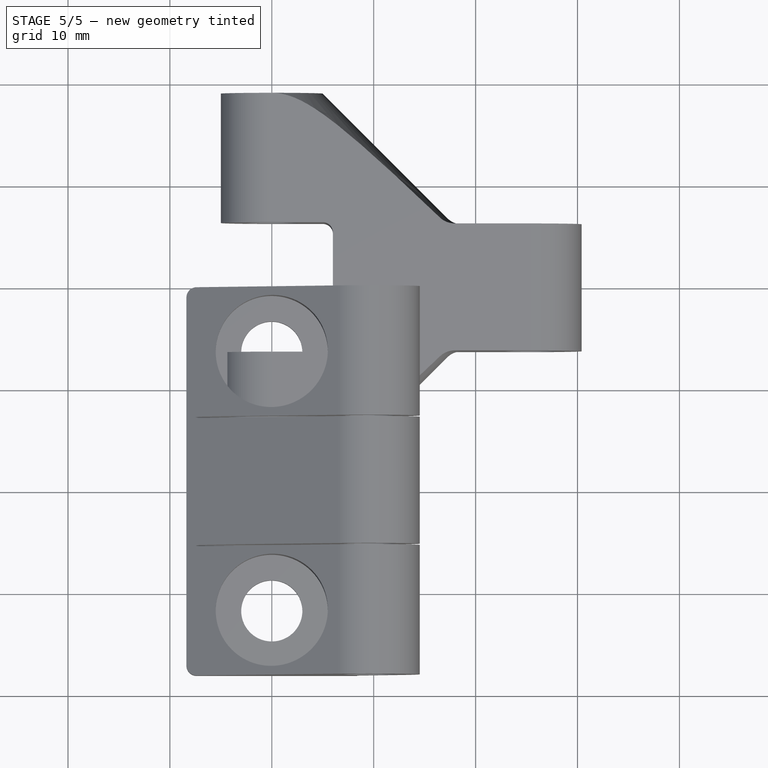
[diagram: stage 5 of 5 — top view after this stage's code; geometry added in this stage tinted green]
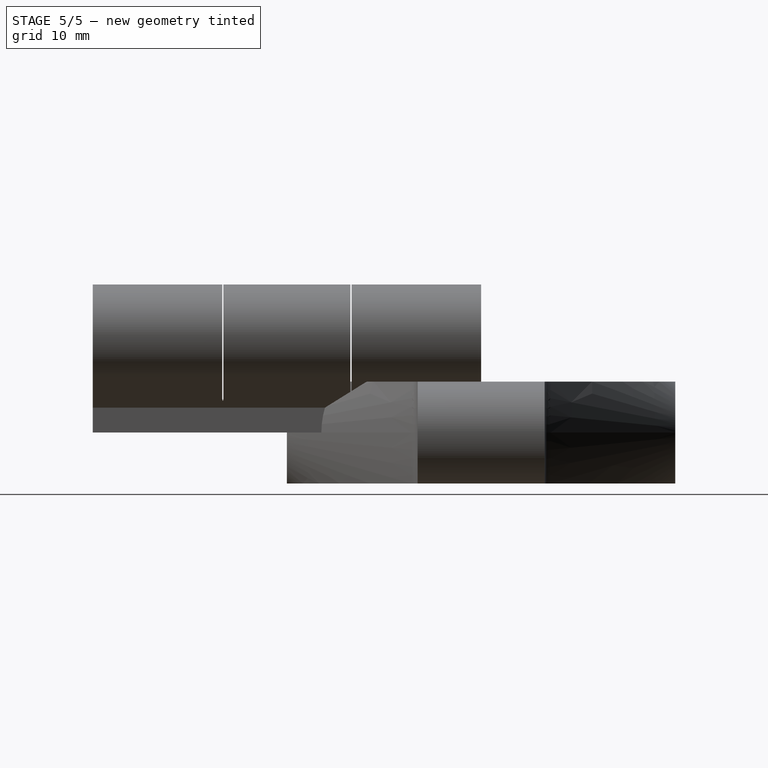
[diagram: stage 5 of 5 — right view after this stage's code; geometry added in this stage tinted green]
FEATURE [Sketcher::SketchObject] Sketch006
  MapMode = 5
  Placement = pos=(0,0,0) rot=(0.57735,0.57735,0.57735;2.0944rad)
  Support = -> [YZ_Plane003]
  expr: Constraints[11] = Pad001.Length / 2
  expr: Constraints[8] = Pad001.Length / 3
  sketch-geometry (5):
    g0: LineSegment StartX=-12.7 StartY=2.44 StartZ=0 EndX=-25.4 EndY=2.44 EndZ=0
    g1: LineSegment StartX=-25.4 StartY=2.44 StartZ=0 EndX=-25.4 EndY=22.44 EndZ=0
    g2: LineSegment StartX=-25.4 StartY=22.44 StartZ=0 EndX=-12.7 EndY=22.44 EndZ=0
    g3: LineSegment StartX=-12.7 StartY=22.44 StartZ=0 EndX=-12.7 EndY=2.44 EndZ=0
    g4: LineSegment StartX=-19.05 StartY=22.44 StartZ=0 EndX=-19.05 EndY=2.44 EndZ=0
  constraints (15):
    c: Coincident(g0,g1)
    c: Coincident(g1,g2)
    c: Coincident(g2,g3)
    c: Coincident(g3,g0)
    c: Horizontal(g0)
    c: Horizontal(g2)
    c: Vertical(g1)
    c: Vertical(g3)
    c: DistanceX(g2,g2) = 12.7
    c: PointOnObject(g4,g2)
    c: PointOnObject(g4,g0)
    c: DistanceX(g4,g-1) = 19.05
    c: Symmetric(g2,g1,g4)
    c: DistanceY(g3,g3) = 20
    c: DistanceY(g-1,g0) = 2.44
FEATURE [PartDesign::Pocket] Pocket001
  BaseFeature = -> Hole001
  Length = 5
  Length2 = 100
  Midplane = true
  Placement = pos=(0,0,0) rot=(1,0,0;1.5708rad)
  Profile = -> Sketch006
  Type = 1
FEATURE [PartDesign::Fillet] Fillet001
  Base = -> Pocket001 [Edge20,Edge10]
  BaseFeature = -> Pocket001
  Placement = pos=(0,0,0) rot=(1,0,0;1.5708rad)
  Radius = 1
  SupportTransform = true
FEATURE [PartDesign::Fillet] Fillet002
  Base = -> Fillet001 [Edge36,Edge21]
  BaseFeature = -> Fillet001
  Placement = pos=(0,0,0) rot=(1,0,0;1.5708rad)
  Radius = 1
  SupportTransform = true
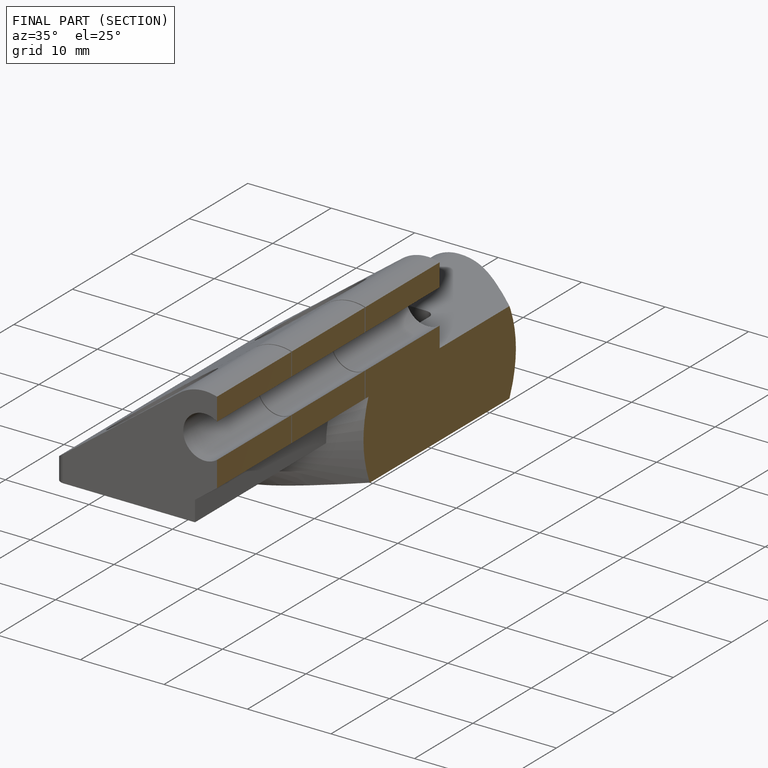
[diagram: finished part — half-section view (interior)]
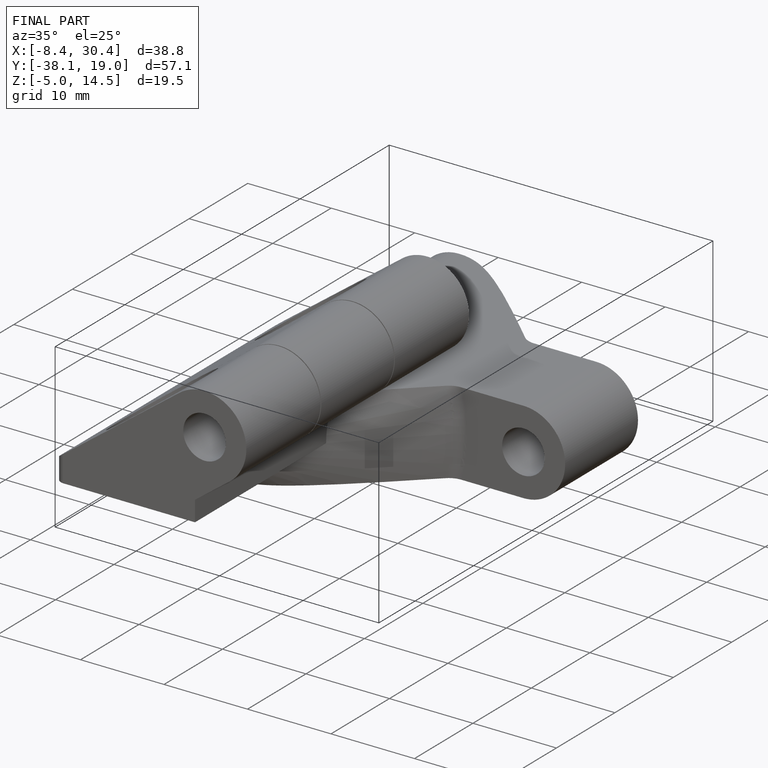
[diagram: finished part — iso view with bounding-box wireframe]
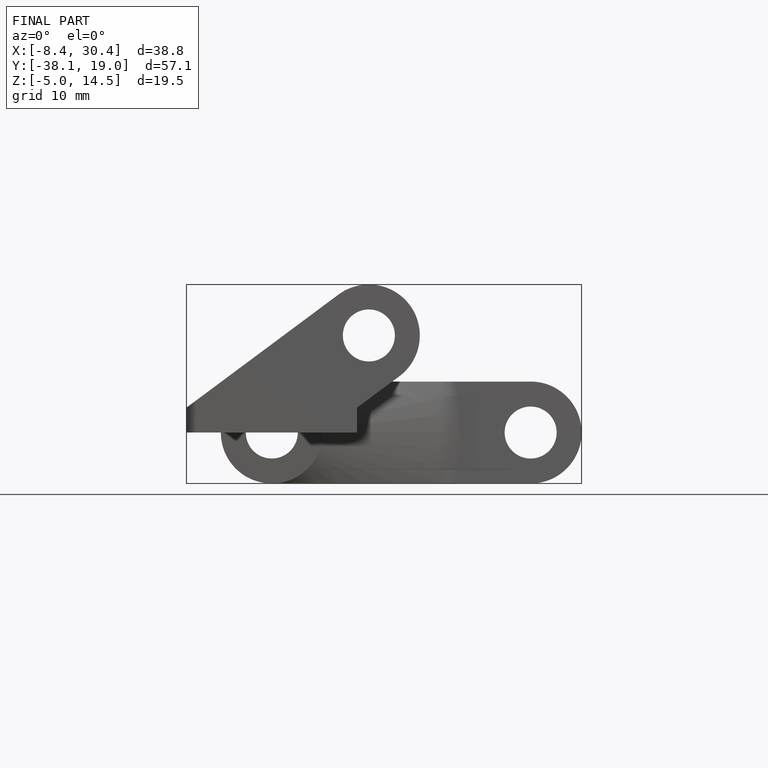
[diagram: finished part — front view with bounding-box wireframe]
